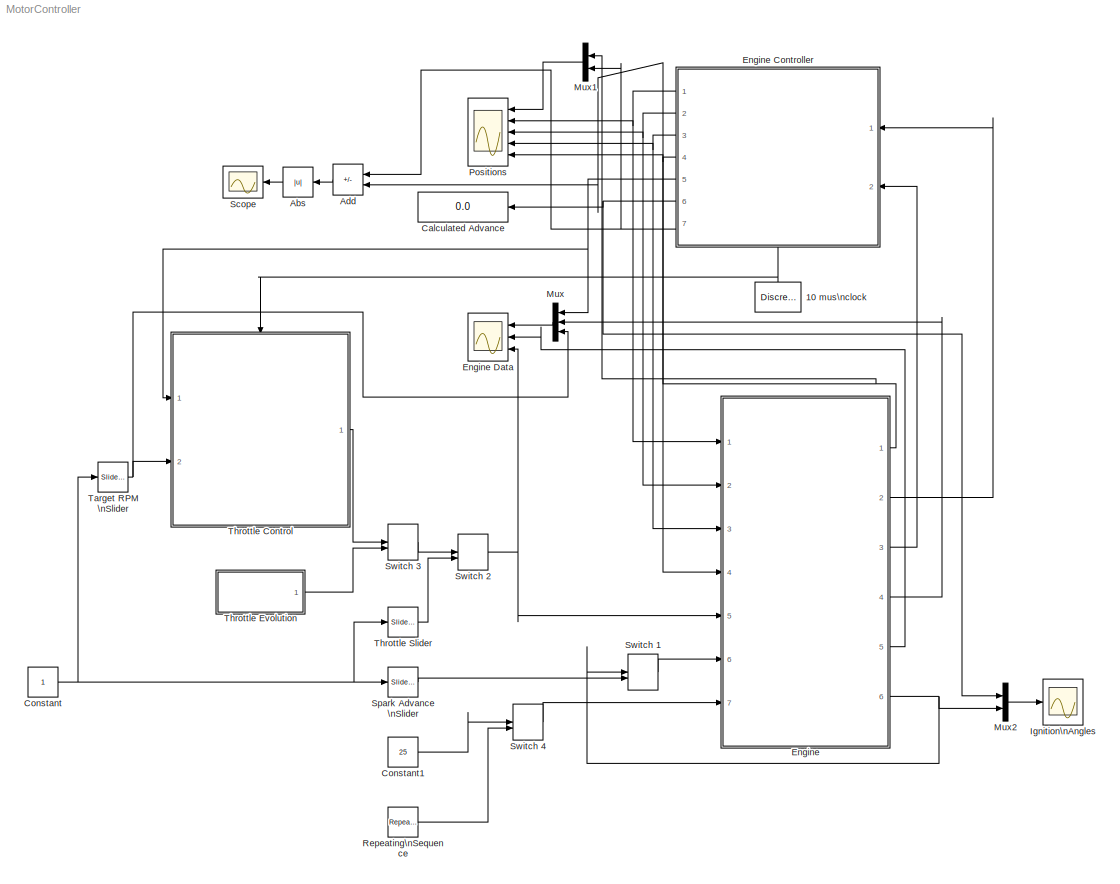
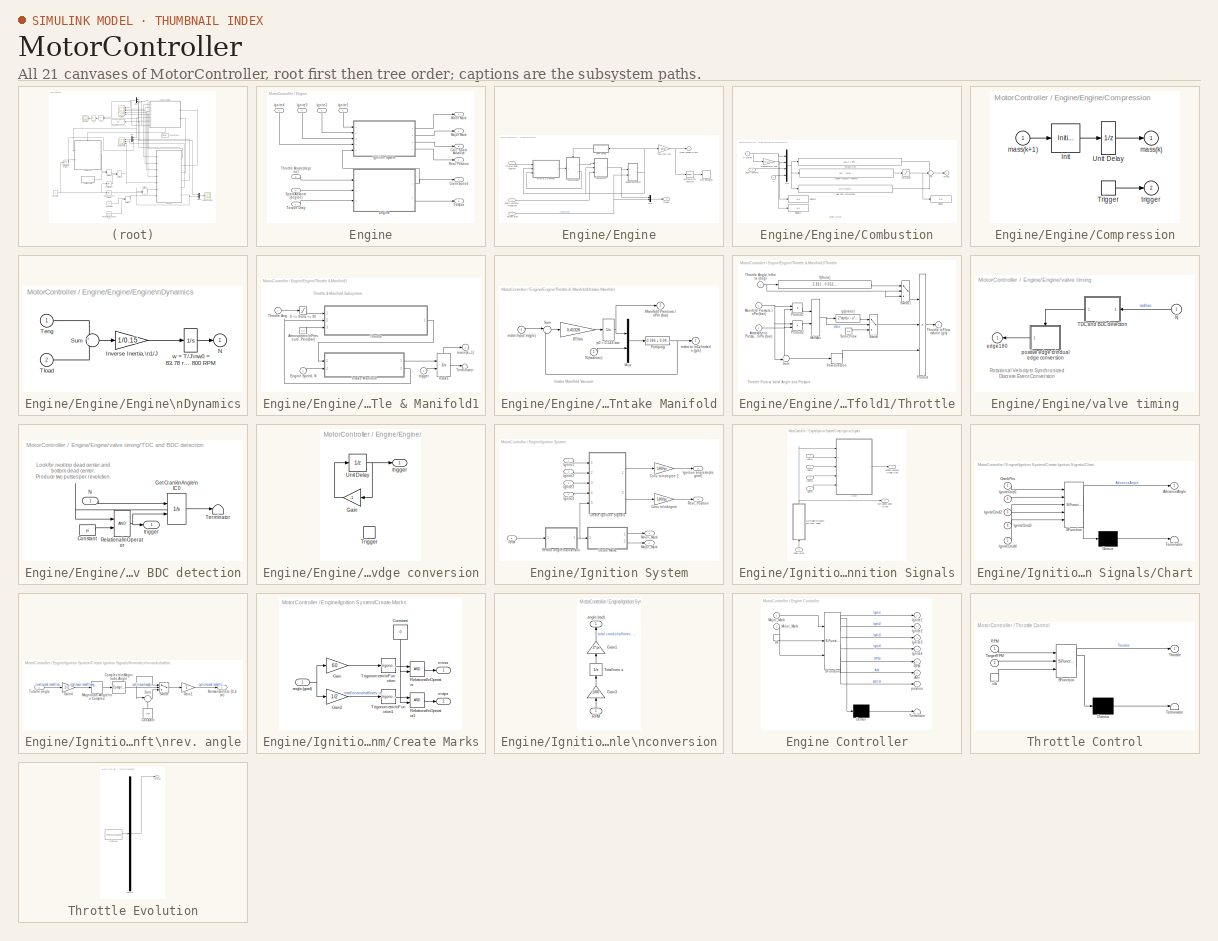
[diagram: thumbnail index - all 21 canvases of the model, root first then tree order]
MODEL MotorController
KIND model
BLOCK [DiscretePulseGenerator] 10 mus\nclock
  NameLocation = left
  Period = 1e-5
  Ports = [0, 1]
  PulseType = Time based
  PulseWidth = 50
  SID = 1
BLOCK [Abs] Abs
  NameLocation = top
  SID = 531
  SaturateOnIntegerOverflow = off
BLOCK [Sum] Add
  IconShape = rectangular
  Inputs = +-
  NameLocation = top
  Ports = [2, 1]
  SID = 530
BLOCK [Display] Calculated Advance
  Decimation = 1
  Ports = [1]
  SID = 64
BLOCK [Constant] Constant
  SID = 377
BLOCK [Constant] Constant1
  SID = 506
  Value = 25
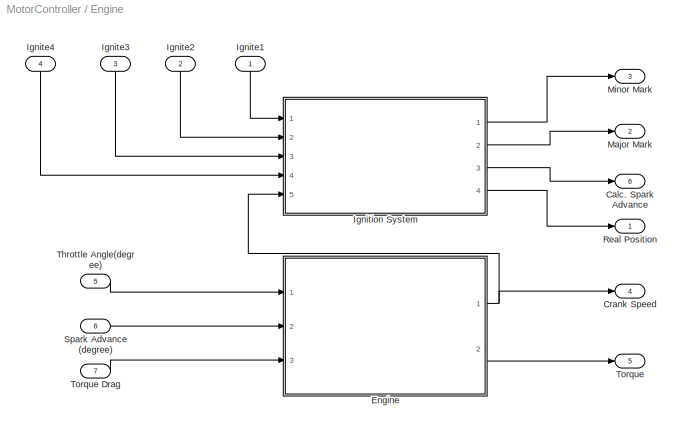
BLOCK [SubSystem] Engine
  Ports = [7, 6]
  RequestExecContextInheritance = off
  SID = 511
BLOCK [SubSystem] Engine Controller
  ErrorFcn = Stateflow.Translate.translate
  NameLocation = top
  PermitHierarchicalResolution = ExplicitOnly
  Ports = [2, 7, 0, 1]
  RequestExecContextInheritance = off
  SFBlockType = Chart
  SID = 41
  TreatAsAtomicUnit = on
BLOCK [Demux] Engine Controller/ Demux 
  Outputs = 1
  Ports = [1, 1]
  SID = 41::31
BLOCK [S-Function] Engine Controller/ SFunction 
  EnableBusSupport = on
  FunctionName = sf_sfun
  PortCounts = [3 8]
  Ports = [3, 8]
  SFcnIsStateOwnerBlock = off
  SFunctionDeploymentMode = off
  SID = 41::30
  Tag = Stateflow S-Function 1
BLOCK [Terminator] Engine Controller/ Terminator 
  SID = 41::32
BLOCK [Outport] Engine Controller/Adv
  Port = 6
  SID = 41::20
BLOCK [Outport] Engine Controller/Ignite1
  SID = 41::8
BLOCK [Outport] Engine Controller/Ignite2
  Port = 2
  SID = 41::9
BLOCK [Outport] Engine Controller/Ignite3
  Port = 3
  SID = 41::10
BLOCK [Outport] Engine Controller/Ignite4
  Port = 4
  SID = 41::11
BLOCK [Inport] Engine Controller/Major_Mark
  SID = 41::1
BLOCK [Inport] Engine Controller/Minor_Mark
  Port = 2
  SID = 41::2
BLOCK [Outport] Engine Controller/RPM
  Port = 5
  SID = 41::12
BLOCK [TriggerPort] Engine Controller/clk
  Ports = [0, 1]
  SID = 41::4
  ShowOutputPort = on
  VariantControl = (inherit)
BLOCK [Outport] Engine Controller/position
  Port = 7
  SID = 41::18
BLOCK [Scope] Engine Data
  Floating = off
  NumInputPorts = 3
  Ports = [3]
  SID = 43
  ScopeSpecificationString = Simulink.scopes.TimeScopeBlockCfg('CurrentConfiguration', extmgr.ConfigurationSet(extmgr.Configuration('Core','General UI',true),extmgr.Configuration('Core','Source UI',true),extmgr.Configuration('Sources','WiredSimulink',true,'DataLoggingVariableName','ScopeData1','DataLoggingSaveFormat','StructureWithTime','DataLoggingDecimation','1','DataLoggingDecimateData',true),extmgr.Configuration('Visuals'...<+3165ch>
BLOCK [Outport] Engine/ Calc. Spark Advance
  Port = 6
  SID = 524
BLOCK [Outport] Engine/Crank Speed
  Port = 4
  SID = 522
BLOCK [SubSystem] Engine/Engine
  Ports = [3, 2]
  RequestExecContextInheritance = off
  SID = 4
BLOCK [SubSystem] Engine/Engine/Combustion
  Ports = [3, 1]
  RequestExecContextInheritance = off
  SID = 201
BLOCK [Inport] Engine/Engine/Combustion/Air Charge
  SID = 202
BLOCK [Display] Engine/Engine/Combustion/Display
  Decimation = 1
  Ports = [1]
  SID = 388
BLOCK [Display] Engine/Engine/Combustion/Display1
  Decimation = 1
  Ports = [1]
  SID = 486
BLOCK [Display] Engine/Engine/Combustion/Display2
  Decimation = 1
  Ports = [1]
  SID = 487
BLOCK [Fcn] Engine/Engine/Combustion/High RPM Corrections
  Expr = -u[4]^5*100/700^5
  SID = 386
BLOCK [Fcn] Engine/Engine/Combustion/Ignition Advance Influence
  Expr = (30 - ((u[3] - u[4] * 0.0015*180/pi)^4)*0.01)
  SID = 209
BLOCK [Mux] Engine/Engine/Combustion/Mux
  DisplayOption = bar
  Ports = [4, 1]
  SID = 204
BLOCK [Inport] Engine/Engine/Combustion/N
  Port = 2
  SID = 203
BLOCK [Saturate] Engine/Engine/Combustion/Saturation
  LowerLimit = -150
  SID = 478
  UpperLimit = 150
BLOCK [Inport] Engine/Engine/Combustion/Spark Advance
  Port = 3
  SID = 373
BLOCK [Gain] Engine/Engine/Combustion/Stoichiometric Fuel
  Gain = 1/14.6
  OutDataTypeStr = Inherit: Same as input
  ParamDataTypeStr = Inherit: Same as input
  SID = 206
  SaturateOnIntegerOverflow = on
BLOCK [Sum] Engine/Engine/Combustion/Sum
  InputSameDT = on
  Inputs = +++
  OutDataTypeStr = Inherit: Same as first input
  Ports = [3, 1]
  SID = 207
  SaturateOnIntegerOverflow = on
BLOCK [Outport] Engine/Engine/Combustion/Torque
  InitialOutput = 0
  SID = 210
BLOCK [Fcn] Engine/Engine/Combustion/Torque Gen
  Expr = -181.3 + 379.36*u[1] + 21.91*u[1]/u[2] - (0.85*u[1]*u[1])/(u[2]^2) +0.027*u[4] - 0.000107*u[4]^2
  SID = 208
BLOCK [Reference] Engine/Engine/Compare\nTo Constant  REF=simulink/Logic and Bit\nOperations/Compare\nTo Constant
  OutDataTypeStr = boolean
  Ports = [1, 1]
  RTWMemSecDataConstants = Inherit from model
  RTWMemSecDataInternal = Inherit from model
  RTWMemSecDataParameters = Inherit from model
  RTWMemSecFuncExecute = Inherit from model
  RTWMemSecFuncInitTerm = Inherit from model
  SID = 484
  SourceBlock = simulink/Logic and Bit\nOperations/Compare\nTo Constant
  SourceProductBaseCode = SL
  SourceType = Compare To Constant
  ZeroCross = on
  const = 500
  relop = <=
BLOCK [SubSystem] Engine/Engine/Compression
  Ports = [1, 2, 0, 1]
  RequestExecContextInheritance = off
  SID = 211
  TreatAsAtomicUnit = on
BLOCK [InitialCondition] Engine/Engine/Compression/Init
  SID = 214
  Value = 0.152
BLOCK [TriggerPort] Engine/Engine/Compression/Trigger
  Ports = [0, 1]
  SID = 213
  ShowOutputPort = on
  TriggerType = either
  VariantControl = (inherit)
BLOCK [UnitDelay] Engine/Engine/Compression/Unit Delay
  HasFrameUpgradeWarning = on
  InitialCondition = 0.152
  SID = 215
  SampleTime = -1
BLOCK [Outport] Engine/Engine/Compression/mass(k)
  InitialOutput = 0.152
  SID = 216
BLOCK [Inport] Engine/Engine/Compression/mass(k+1)
  SID = 212
BLOCK [Outport] Engine/Engine/Compression/trigger
  InitialOutput = -1
  Port = 2
  SID = 217
BLOCK [SubSystem] Engine/Engine/Engine\nDynamics
  Ports = [2, 1]
  RequestExecContextInheritance = off
  SID = 223
BLOCK [Gain] Engine/Engine/Engine\nDynamics/Inverse Inertia,\n1//J
  Gain = 1/0.15
  OutDataTypeStr = Inherit: Same as input
  ParamDataTypeStr = Inherit: Same as input
  SID = 226
  SaturateOnIntegerOverflow = on
BLOCK [Outport] Engine/Engine/Engine\nDynamics/N
  InitialOutput = 0
  SID = 229
BLOCK [Sum] Engine/Engine/Engine\nDynamics/Sum
  InputSameDT = on
  Inputs = +-
  OutDataTypeStr = Inherit: Same as first input
  Ports = [2, 1]
  SID = 227
  SaturateOnIntegerOverflow = on
BLOCK [Inport] Engine/Engine/Engine\nDynamics/Teng
  SID = 224
BLOCK [Inport] Engine/Engine/Engine\nDynamics/Tload
  Port = 2
  SID = 225
BLOCK [Integrator] Engine/Engine/Engine\nDynamics/w = T//J\nw0 = 83.78 rad//s = 800 RPM
  InitialCondition = 83.78
  Ports = [1, 1]
  SID = 228
BLOCK [Mux] Engine/Engine/Mux
  DisplayOption = bar
  Inputs = 2
  Ports = [2, 1]
  SID = 231
BLOCK [Inport] Engine/Engine/Spark Adnvance \n(degree)
  Port = 2
  SID = 458
BLOCK [Stop] Engine/Engine/Stop Simulation
  SID = 485
BLOCK [SubSystem] Engine/Engine/Throttle & Manifold1
  Ports = [3, 1]
  RequestExecContextInheritance = off
  SID = 232
BLOCK [Saturate] Engine/Engine/Throttle & Manifold1/0 <= theta <= 90
  LowerLimit = 0
  NameLocation = top
  SID = 236
  UpperLimit = 90
BLOCK [Constant] Engine/Engine/Throttle & Manifold1/Atmospheric\nPressure, Pa\n(bar)
  SID = 237
  Value = 1.0
BLOCK [Inport] Engine/Engine/Throttle & Manifold1/Engine Speed, N
  Port = 2
  SID = 234
BLOCK [Integrator] Engine/Engine/Throttle & Manifold1/Intake
  ExternalReset = either
  Ports = [2, 1, 0, 0, 1]
  SID = 238
  ShowStatePort = on
BLOCK [SubSystem] Engine/Engine/Throttle & Manifold1/Intake Manifold
  Ports = [2, 2]
  RequestExecContextInheritance = off
  SID = 239
BLOCK [Outport] Engine/Engine/Throttle & Manifold1/Intake Manifold/Manifold Pressure,\nPm (bar)
  InitialOutput = 0
  Port = 2
  SID = 248
BLOCK [Mux] Engine/Engine/Throttle & Manifold1/Intake Manifold/Mux
  DisplayOption = bar
  Inputs = 2
  Ports = [2, 1]
  SID = 242
BLOCK [Inport] Engine/Engine/Throttle & Manifold1/Intake Manifold/N (rad//sec)
  Port = 2
  SID = 241
BLOCK [Fcn] Engine/Engine/Throttle & Manifold1/Intake Manifold/Pumping
  Expr = -0.366 + 0.08979*u[1]*u[2] - 0.0337*u[2]*u[1]*u[1] + 0.0001*u[1]*u[2]*u[2]
  SID = 243
BLOCK [Gain] Engine/Engine/Throttle & Manifold1/Intake Manifold/RT//Vm
  Gain = 0.41328
  OutDataTypeStr = Inherit: Same as input
  ParamDataTypeStr = Inherit: Same as input
  SID = 244
  SaturateOnIntegerOverflow = on
BLOCK [Sum] Engine/Engine/Throttle & Manifold1/Intake Manifold/Sum
  InputSameDT = on
  Inputs = |+-
  OutDataTypeStr = Inherit: Same as first input
  Ports = [2, 1]
  SID = 245
  SaturateOnIntegerOverflow = on
BLOCK [Inport] Engine/Engine/Throttle & Manifold1/Intake Manifold/mdot Input \n(g//s)
  SID = 240
BLOCK [Outport] Engine/Engine/Throttle & Manifold1/Intake Manifold/mdot to \nCylinder\n (g//s)
  InitialOutput = 0
  SID = 247
BLOCK [Integrator] Engine/Engine/Throttle & Manifold1/Intake Manifold/p0 = 0.543 bar
  InitialCondition = .543
  Ports = [1, 1]
  SID = 246
BLOCK [Terminator] Engine/Engine/Throttle & Manifold1/Terminator
  SID = 249
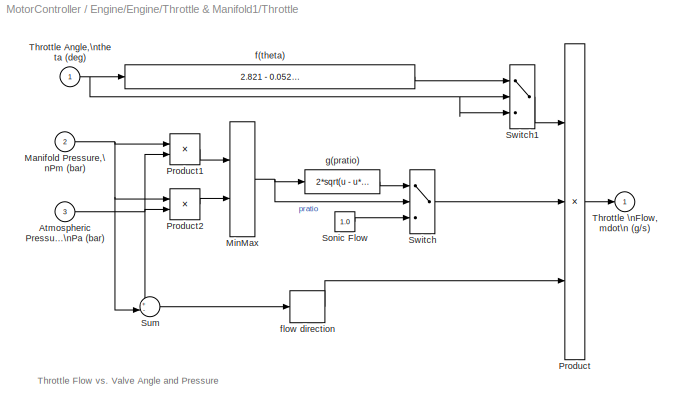
BLOCK [SubSystem] Engine/Engine/Throttle & Manifold1/Throttle
  Ports = [3, 1]
  RequestExecContextInheritance = off
  SID = 250
BLOCK [Inport] Engine/Engine/Throttle & Manifold1/Throttle Ang.
  SID = 233
BLOCK [Inport] Engine/Engine/Throttle & Manifold1/Throttle/Atmospheric Pressure,\nPa (bar) 
  Port = 3
  SID = 253
BLOCK [Inport] Engine/Engine/Throttle & Manifold1/Throttle/Manifold Pressure,\nPm (bar)
  Port = 2
  SID = 252
BLOCK [MinMax] Engine/Engine/Throttle & Manifold1/Throttle/MinMax
  InputSameDT = on
  Inputs = 2
  Ports = [2, 1]
  SID = 254
  SaturateOnIntegerOverflow = on
BLOCK [Product] Engine/Engine/Throttle & Manifold1/Throttle/Product
  InputSameDT = on
  Inputs = 3
  OutDataTypeStr = Inherit: Same as first input
  Ports = [3, 1]
  RndMeth = Zero
  SID = 255
  SaturateOnIntegerOverflow = on
BLOCK [Product] Engine/Engine/Throttle & Manifold1/Throttle/Product1
  InputSameDT = on
  Inputs = */
  OutDataTypeStr = Inherit: Same as first input
  Ports = [2, 1]
  RndMeth = Zero
  SID = 256
  SaturateOnIntegerOverflow = on
BLOCK [Product] Engine/Engine/Throttle & Manifold1/Throttle/Product2
  InputSameDT = on
  Inputs = /*
  OutDataTypeStr = Inherit: Same as first input
  Ports = [2, 1]
  RndMeth = Zero
  SID = 257
  SaturateOnIntegerOverflow = on
BLOCK [Constant] Engine/Engine/Throttle & Manifold1/Throttle/Sonic Flow 
  SID = 258
  Value = 1.0
BLOCK [Sum] Engine/Engine/Throttle & Manifold1/Throttle/Sum
  InputSameDT = on
  Inputs = +-|
  OutDataTypeStr = Inherit: Same as first input
  Ports = [2, 1]
  SID = 259
  SaturateOnIntegerOverflow = on
BLOCK [Switch] Engine/Engine/Throttle & Manifold1/Throttle/Switch
  SID = 260
  Threshold = 0.5
BLOCK [Switch] Engine/Engine/Throttle & Manifold1/Throttle/Switch1
  SID = 385
BLOCK [Inport] Engine/Engine/Throttle & Manifold1/Throttle/Throttle Angle,\ntheta (deg)
  NameLocation = top
  SID = 251
BLOCK [Outport] Engine/Engine/Throttle & Manifold1/Throttle/Throttle \nFlow, mdot\n (g//s)
  InitialOutput = 0
  SID = 264
BLOCK [Fcn] Engine/Engine/Throttle & Manifold1/Throttle/f(theta)
  Expr = 2.821 - 0.05231*u + 0.10299*u*u - 0.00063*u*u*u
  NameLocation = top
  SID = 261
BLOCK [Signum] Engine/Engine/Throttle & Manifold1/Throttle/flow direction
  SID = 262
BLOCK [Fcn] Engine/Engine/Throttle & Manifold1/Throttle/g(pratio)
  Expr = 2*sqrt(u - u*u)
  NameLocation = top
  SID = 263
BLOCK [Outport] Engine/Engine/Throttle & Manifold1/mass(k+1)
  InitialOutput = 0
  SID = 265
BLOCK [Inport] Engine/Engine/Throttle & Manifold1/trigger
  Port = 3
  SID = 235
BLOCK [Inport] Engine/Engine/Throttle angle (degree)
  OutDataTypeStr = double
  OutMax = 90
  OutMin = 0
  SID = 60
  VarSizeSig = No
BLOCK [Outport] Engine/Engine/Torque
  Port = 2
  SID = 380
BLOCK [Inport] Engine/Engine/Torque drag
  OutDataTypeStr = double
  Port = 3
  SID = 509
BLOCK [Outport] Engine/Engine/crank speed\n(rpm)
  InitialOutput = 0
  SID = 284
BLOCK [Gain] Engine/Engine/rad//s\nto rpm
  Gain = 30/pi
  OutDataTypeStr = Inherit: Same as input
  ParamDataTypeStr = Inherit: Same as input
  SID = 370
  SaturateOnIntegerOverflow = on
BLOCK [SubSystem] Engine/Engine/valve timing
  Ports = [1, 1]
  RequestExecContextInheritance = off
  SID = 269
BLOCK [Inport] Engine/Engine/valve timing/N
  SID = 270
BLOCK [SubSystem] Engine/Engine/valve timing/TDC and BDC detection
  Ports = [1, 1]
  RequestExecContextInheritance = off
  SID = 271
BLOCK [Constant] Engine/Engine/valve timing/TDC and BDC detection/Constant
  SID = 273
  Value = pi
BLOCK [Integrator] Engine/Engine/valve timing/TDC and BDC detection/Get Crank\nAngle\nIC 0
  ExternalReset = rising
  NameLocation = top
  Ports = [2, 1, 0, 0, 1]
  SID = 274
  ShowStatePort = on
BLOCK [Inport] Engine/Engine/valve timing/TDC and BDC detection/N
  SID = 272
BLOCK [RelationalOperator] Engine/Engine/valve timing/TDC and BDC detection/Relational\nOperator
  Ports = [2, 1]
  SID = 275
BLOCK [Terminator] Engine/Engine/valve timing/TDC and BDC detection/Terminator
  SID = 276
BLOCK [Outport] Engine/Engine/valve timing/TDC and BDC detection/trigger
  InitialOutput = 0
  SID = 277
BLOCK [Outport] Engine/Engine/valve timing/edge180
  InitialOutput = -1
  SID = 283
BLOCK [SubSystem] Engine/Engine/valve timing/positive edge to\ndual edge conversion
  Ports = [0, 1, 0, 1]
  RequestExecContextInheritance = off
  SID = 278
  TreatAsAtomicUnit = on
BLOCK [Gain] Engine/Engine/valve timing/positive edge to\ndual edge conversion/Gain
  Gain = -1
  OutDataTypeStr = Inherit: Same as input
  ParamDataTypeStr = Inherit: Same as input
  SID = 280
  SaturateOnIntegerOverflow = on
BLOCK [TriggerPort] Engine/Engine/valve timing/positive edge to\ndual edge conversion/Trigger
  Ports = []
  SID = 279
  VariantControl = (inherit)
BLOCK [UnitDelay] Engine/Engine/valve timing/positive edge to\ndual edge conversion/Unit Delay
  HasFrameUpgradeWarning = on
  InitialCondition = 1
  SID = 281
  SampleTime = -1
BLOCK [Outport] Engine/Engine/valve timing/positive edge to\ndual edge conversion/trigger
  InitialOutput = -1
  SID = 282
BLOCK [Inport] Engine/Ignite1
  NameLocation = left
  SID = 512
BLOCK [Inport] Engine/Ignite2
  NameLocation = left
  Port = 2
  SID = 513
BLOCK [Inport] Engine/Ignite3
  NameLocation = left
  Port = 3
  SID = 514
BLOCK [Inport] Engine/Ignite4
  NameLocation = left
  Port = 4
  SID = 515
BLOCK [SubSystem] Engine/Ignition System
  Ports = [5, 4]
  RequestExecContextInheritance = off
  SID = 390
BLOCK [Gain] Engine/Ignition System/Conv. to\ndegree
  Gain = 180/pi
  OutDataTypeStr = Inherit: Same as input
  ParamDataTypeStr = Inherit: Same as input
  SID = 397
  SaturateOnIntegerOverflow = on
BLOCK [Gain] Engine/Ignition System/Conv. to\ndegree 2
  Gain = 180/pi
  OutDataTypeStr = Inherit: Same as input
  ParamDataTypeStr = Inherit: Same as input
  SID = 398
  SaturateOnIntegerOverflow = on
BLOCK [SubSystem] Engine/Ignition System/Create Ignition Signals
  Ports = [5, 2]
  RequestExecContextInheritance = off
  SID = 399
BLOCK [SubSystem] Engine/Ignition System/Create Ignition Signals/Chart
  ErrorFcn = Stateflow.Translate.translate
  PermitHierarchicalResolution = ExplicitOnly
  Ports = [5, 1]
  RequestExecContextInheritance = off
  SFBlockType = Chart
  SID = 476
  TreatAsAtomicUnit = on
BLOCK [Demux] Engine/Ignition System/Create Ignition Signals/Chart/ Demux 
  Outputs = 1
  Ports = [1, 1]
  SID = 476::39
BLOCK [S-Function] Engine/Ignition System/Create Ignition Signals/Chart/ SFunction 
  EnableBusSupport = on
  FunctionName = sf_sfun
  PortCounts = [5 2]
  Ports = [5, 2]
  SFcnIsStateOwnerBlock = off
  SFunctionDeploymentMode = off
  SID = 476::38
  Tag = Stateflow S-Function 2
BLOCK [Terminator] Engine/Ignition System/Create Ignition Signals/Chart/ Terminator 
  SID = 476::40
BLOCK [Outport] Engine/Ignition System/Create Ignition Signals/Chart/AdvanceAngle
  SID = 476::25
BLOCK [Inport] Engine/Ignition System/Create Ignition Signals/Chart/CrankPos
  SID = 476::26
BLOCK [Inport] Engine/Ignition System/Create Ignition Signals/Chart/IgniteCmd1
  Port = 2
  SID = 476::27
BLOCK [Inport] Engine/Ignition System/Create Ignition Signals/Chart/IgniteCmd2
  Port = 3
  SID = 476::28
BLOCK [Inport] Engine/Ignition System/Create Ignition Signals/Chart/IgniteCmd3
  Port = 4
  SID = 476::29
BLOCK [Inport] Engine/Ignition System/Create Ignition Signals/Chart/IgniteCmd4
  Port = 5
  SID = 476::30
BLOCK [Inport] Engine/Ignition System/Create Ignition Signals/Ignite1
  SID = 400
BLOCK [Inport] Engine/Ignition System/Create Ignition Signals/Ignite2
  Port = 2
  SID = 401
BLOCK [Inport] Engine/Ignition System/Create Ignition Signals/Ignite3
  Port = 3
  SID = 402
BLOCK [Inport] Engine/Ignition System/Create Ignition Signals/Ignite4
  Port = 4
  SID = 403
BLOCK [Outport] Engine/Ignition System/Create Ignition Signals/Ignition Advance \nAngle (rad)
  SID = 432
BLOCK [SubSystem] Engine/Ignition System/Create Ignition Signals/Normalize\ncrankshaft\nrev. angle
  NameLocation = left
  Ports = [1, 1]
  RequestExecContextInheritance = off
  SID = 422
BLOCK [ComplexToMagnitudeAngle] Engine/Ignition System/Create Ignition Signals/Normalize\ncrankshaft\nrev. angle/Complex to\nMagnitude-Angle
  NameLocation = top
  Output = Angle
  Ports = [1, 1]
  SID = 424
BLOCK [Constant] Engine/Ignition System/Create Ignition Signals/Normalize\ncrankshaft\nrev. angle/Constant
  NameLocation = left
  SID = 425
  Value = 2*pi
BLOCK [Gain] Engine/Ignition System/Create Ignition Signals/Normalize\ncrankshaft\nrev. angle/Gain1
  Gain = 2
  NameLocation = top
  OutDataTypeStr = Inherit: Same as input
  ParamDataTypeStr = Inherit: Same as input
  SID = 426
  SaturateOnIntegerOverflow = on
BLOCK [Gain] Engine/Ignition System/Create Ignition Signals/Normalize\ncrankshaft\nrev. angle/Gain4
  Gain = 1/2
  NameLocation = top
  OutDataTypeStr = Inherit: Same as input
  ParamDataTypeStr = Inherit: Same as input
  SID = 427
  SaturateOnIntegerOverflow = on
BLOCK [MagnitudeAngleToComplex] Engine/Ignition System/Create Ignition Signals/Normalize\ncrankshaft\nrev. angle/Magnitude-Angle\nto Complex
  ConstantPart = 1
  Input = Angle
  Ports = [1, 1]
  SID = 428
BLOCK [Outport] Engine/Ignition System/Create Ignition Signals/Normalize\ncrankshaft\nrev. angle/Normalized\nto [0,4 pi)
  SID = 431
BLOCK [Sum] Engine/Ignition System/Create Ignition Signals/Normalize\ncrankshaft\nrev. angle/Sum
  Inputs = |++
  Ports = [2, 1]
  SID = 429
  SaturateOnIntegerOverflow = on
BLOCK [Switch] Engine/Ignition System/Create Ignition Signals/Normalize\ncrankshaft\nrev. angle/Switch
  InputSameDT = off
  SID = 430
BLOCK [Inport] Engine/Ignition System/Create Ignition Signals/Normalize\ncrankshaft\nrev. angle/Total\n angle
  SID = 423
BLOCK [Inport] Engine/Ignition System/Create Ignition Signals/angle (grad)
  NameLocation = right
  Port = 5
  SID = 404
BLOCK [Outport] Engine/Ignition System/Create Ignition Signals/normalized angle \n(rad)
  Port = 2
  SID = 434
BLOCK [SubSystem] Engine/Ignition System/Create Marks
  Ports = [1, 2]
  RequestExecContextInheritance = off
  SID = 435
BLOCK [Constant] Engine/Ignition System/Create Marks/Constant
  NameLocation = left
  SID = 437
  Value = 0
BLOCK [Gain] Engine/Ignition System/Create Marks/Gain
  Gain = 60
  OutDataTypeStr = Inherit: Same as input
  ParamDataTypeStr = Inherit: Same as input
  SID = 438
  SaturateOnIntegerOverflow = on
BLOCK [Gain] Engine/Ignition System/Create Marks/Gain2
  Gain = 1/2
  OutDataTypeStr = Inherit: Same as input
  ParamDataTypeStr = Inherit: Same as input
  SID = 439
  SaturateOnIntegerOverflow = on
BLOCK [RelationalOperator] Engine/Ignition System/Create Marks/Relational\nOperator
  InputSameDT = off
  OutDataTypeStr = boolean
  Ports = [2, 1]
  SID = 440
BLOCK [RelationalOperator] Engine/Ignition System/Create Marks/Relational\nOperator1
  InputSameDT = off
  OutDataTypeStr = boolean
  Ports = [2, 1]
  SID = 441
BLOCK [Trigonometry] Engine/Ignition System/Create Marks/Trigonometric\nFunction
  Ports = [1, 1]
  SID = 442
BLOCK [Trigonometry] Engine/Ignition System/Create Marks/Trigonometric\nFunction1
  Ports = [1, 1]
  SID = 443
BLOCK [Inport] Engine/Ignition System/Create Marks/angle (grad)
  SID = 436
BLOCK [Outport] Engine/Ignition System/Create Marks/major
  Port = 2
  SID = 445
BLOCK [Outport] Engine/Ignition System/Create Marks/minor
  SID = 444
BLOCK [Inport] Engine/Ignition System/Ignite1
  OutDataTypeStr = boolean
  SID = 393
BLOCK [Inport] Engine/Ignition System/Ignite2
  OutDataTypeStr = boolean
  Port = 2
  SID = 394
BLOCK [Inport] Engine/Ignition System/Ignite3
  OutDataTypeStr = boolean
  Port = 3
  SID = 395
BLOCK [Inport] Engine/Ignition System/Ignite4
  OutDataTypeStr = boolean
  Port = 4
  SID = 396
BLOCK [Outport] Engine/Ignition System/Ignition angles\n(degree)
  Port = 3
  SID = 455
BLOCK [Outport] Engine/Ignition System/Major_Mark
  Port = 2
  SID = 454
BLOCK [Outport] Engine/Ignition System/Minor_Mark
  SID = 453
BLOCK [Inport] Engine/Ignition System/RPM
  Port = 5
  SID = 457
BLOCK [SubSystem] Engine/Ignition System/RPM to angle\nconversion
  Ports = [1, 1]
  RequestExecContextInheritance = off
  SID = 447
BLOCK [Gain] Engine/Ignition System/RPM to angle\nconversion/Gain1
  Gain = 2*pi
  NameLocation = left
  OutDataTypeStr = Inherit: Same as input
  ParamDataTypeStr = Inherit: Same as input
  SID = 449
  SaturateOnIntegerOverflow = on
BLOCK [Gain] Engine/Ignition System/RPM to angle\nconversion/Gain3
  Gain = 1/60
  NameLocation = left
  OutDataTypeStr = Inherit: Same as input
  ParamDataTypeStr = Inherit: Same as input
  SID = 450
  SaturateOnIntegerOverflow = on
BLOCK [Inport] Engine/Ignition System/RPM to angle\nconversion/RPM
  NameLocation = right
  SID = 448
BLOCK [Integrator] Engine/Ignition System/RPM to angle\nconversion/Total\nrev.s
  NameLocation = right
  Ports = [1, 1]
  SID = 451
BLOCK [Outport] Engine/Ignition System/RPM to angle\nconversion/angle (rad)
  NameLocation = right
  SID = 452
BLOCK [Outport] Engine/Ignition System/Real_Position
  Port = 4
  SID = 456
BLOCK [Outport] Engine/Major Mark
  Port = 2
  SID = 520
BLOCK [Outport] Engine/Minor Mark
  Port = 3
  SID = 521
BLOCK [Outport] Engine/Real Position
  SID = 519
BLOCK [Inport] Engine/Spark Advance (degree)
  Port = 6
  SID = 517
BLOCK [Inport] Engine/Throttle Angle(degree)
  Port = 5
  SID = 516
BLOCK [Outport] Engine/Torque
  Port = 5
  SID = 523
BLOCK [Inport] Engine/Torque Drag
  Port = 7
  SID = 518
BLOCK [Scope] Ignition\nAngles
  Floating = off
  NumInputPorts = 1
  Ports = [1]
  SID = 39
  ScopeSpecificationString = Simulink.scopes.TimeScopeBlockCfg('CurrentConfiguration', extmgr.ConfigurationSet(extmgr.Configuration('Core','General UI',true),extmgr.Configuration('Core','Source UI',true),extmgr.Configuration('Sources','WiredSimulink',true,'DataLoggingSaveFormat','StructureWithTime','DataLoggingMaxPoints','100000','DataLoggingLimitDataPoints',true,'DataLoggingDecimation','1','DataLoggingDecimateData',true),ext...<+1737ch>
BLOCK [Mux] Mux
  DisplayOption = bar
  Inputs = 3
  Ports = [3, 1]
  SID = 42
BLOCK [Mux] Mux1
  DisplayOption = bar
  Inputs = 2
  NameLocation = top
  Ports = [2, 1]
  SID = 59
BLOCK [Mux] Mux2
  DisplayOption = bar
  Inputs = 2
  NameLocation = top
  Ports = [2, 1]
  SID = 477
BLOCK [Scope] Positions
  Floating = off
  NumInputPorts = 5
  Ports = [5]
  SID = 56
  ScopeSpecificationString = Simulink.scopes.TimeScopeBlockCfg('CurrentConfiguration', extmgr.ConfigurationSet(extmgr.Configuration('Core','General UI',true),extmgr.Configuration('Core','Source UI',true),extmgr.Configuration('Sources','WiredSimulink',true,'DataLoggingVariableName','ScopeData2','DataLoggingSaveFormat','StructureWithTime','DataLoggingLimitDataPoints',true,'DataLoggingDecimation','1','DataLoggingDecimateData',tr...<+4544ch>
BLOCK [Reference] Repeating\nSequence  REF=simulink/Sources/Repeating\nSequence
  Ports = [0, 1]
  RTWMemSecDataConstants = Inherit from model
  RTWMemSecDataInternal = Inherit from model
  RTWMemSecDataParameters = Inherit from model
  RTWMemSecFuncExecute = Inherit from model
  RTWMemSecFuncInitTerm = Inherit from model
  SID = 510
  SourceBlock = simulink/Sources/Repeating\nSequence
  SourceProductBaseCode = SL
  SourceType = Repeating table
  rep_seq_t = [0 1 2 3 4 5 6]
  rep_seq_y = [20 40 60 80 40 0 20]
BLOCK [Scope] Scope
  Floating = off
  NameLocation = top
  NumInputPorts = 1
  Ports = [1]
  SID = 528
  ScopeSpecificationString = Simulink.scopes.TimeScopeBlockCfg('CurrentConfiguration', extmgr.ConfigurationSet(extmgr.Configuration('Core','General UI',true),extmgr.Configuration('Core','Source UI',true),extmgr.Configuration('Sources','WiredSimulink',true,'DataLoggingVariableName','ScopeData1'),extmgr.Configuration('Visuals','Time Domain',true,'SerializedDisplays',{struct('MinYLimReal','1.76713','MaxYLimReal','1.7686','YLabel...<+1426ch>
BLOCK [Reference] Spark Advance \nSlider  REF=simulink/Math\nOperations/Slider\nGain
  Ports = [1, 1]
  RTWMemSecDataConstants = Inherit from model
  RTWMemSecDataInternal = Inherit from model
  RTWMemSecDataParameters = Inherit from model
  RTWMemSecFuncExecute = Inherit from model
  RTWMemSecFuncInitTerm = Inherit from model
  SID = 374
  SourceBlock = simulink/Math\nOperations/Slider\nGain
  SourceProductBaseCode = SL
  SourceType = Slider Gain
  gain = 5.0
  high = 60
  low = -15
BLOCK [ManualSwitch] Switch 1
  CurrentSetting = 0
  SID = 459
BLOCK [ManualSwitch] Switch 2
  CurrentSetting = 0
  SID = 376
BLOCK [ManualSwitch] Switch 3
  CurrentSetting = 0
  SID = 480
BLOCK [ManualSwitch] Switch 4
  SID = 504
BLOCK [Reference] Target RPM \nSlider  REF=simulink/Math\nOperations/Slider\nGain
  Ports = [1, 1]
  RTWMemSecDataConstants = Inherit from model
  RTWMemSecDataInternal = Inherit from model
  RTWMemSecDataParameters = Inherit from model
  RTWMemSecFuncExecute = Inherit from model
  RTWMemSecFuncInitTerm = Inherit from model
  SID = 483
  SourceBlock = simulink/Math\nOperations/Slider\nGain
  SourceProductBaseCode = SL
  SourceType = Slider Gain
  gain = 7000
  high = 7000
  low = 800
BLOCK [SubSystem] Throttle Control
  ErrorFcn = Stateflow.Translate.translate
  PermitHierarchicalResolution = ExplicitOnly
  Ports = [2, 1, 0, 1]
  RequestExecContextInheritance = off
  SFBlockType = Chart
  SID = 481
  TreatAsAtomicUnit = on
BLOCK [Demux] Throttle Control/ Demux 
  Outputs = 1
  Ports = [1, 1]
  SID = 481::38
BLOCK [S-Function] Throttle Control/ SFunction 
  EnableBusSupport = on
  FunctionName = sf_sfun
  PortCounts = [3 2]
  Ports = [3, 2]
  SFcnIsStateOwnerBlock = off
  SFunctionDeploymentMode = off
  SID = 481::37
  Tag = Stateflow S-Function 3
BLOCK [Terminator] Throttle Control/ Terminator 
  SID = 481::39
BLOCK [Inport] Throttle Control/RPM
  SID = 481::25
BLOCK [Inport] Throttle Control/TargetRPM
  Port = 2
  SID = 481::26
BLOCK [Outport] Throttle Control/Throttle
  SID = 481::27
BLOCK [TriggerPort] Throttle Control/clk
  Ports = [0, 1]
  SID = 481::28
  ShowOutputPort = on
  StatesWhenEnabling = held
  VariantControl = (inherit)
BLOCK [SubSystem] Throttle Evolution
  ClipboardFcn = sigbuilder_block('clipboard');
  CloseFcn = sigbuilder_block('close');
  ContinueFcn = sigbuilder_block('continue')
  CopyFcn = sigbuilder_block('copy');
  DeleteFcn = sigbuilder_block('delete');
  LoadFcn = sigbuilder_block('load');
  MaskHideContents = on
  ModelCloseFcn = sigbuilder_block('modelClose');
  NameChangeFcn = sigbuilder_block('namechange');
  OpenFcn = sigbuilder_block('open',[54.75 146.25 550.5 390.75 ]);
  PauseFcn = sigbuilder_block('pause')
  Ports = [0, 1]
  PreSaveFcn = sigbuilder_block('preSave');
  RequestExecContextInheritance = off
  SID = 70
  StartFcn = sigbuilder_block('start');
  StopFcn = sigbuilder_block('stop');
  Tag = STV Subsys
BLOCK [Demux] Throttle Evolution/Demux
  DisplayOption = none
  Outputs = 1
  Ports = [1, 1]
  SID = 70:1
  Tag = STV Demux
BLOCK [FromWorkspace] Throttle Evolution/FromWs
  SID = 70:2
  SigBuilderData = DataTag0
  Tag = STV FromWs
  VariableName = tuvar
  VnvData = DataTag1
BLOCK [Outport] Throttle Evolution/Throttle
  SID = 70:3
  Tag = STV Outport
BLOCK [Reference] Throttle Slider  REF=simulink/Math\nOperations/Slider\nGain
  Ports = [1, 1]
  RTWMemSecDataConstants = Inherit from model
  RTWMemSecDataInternal = Inherit from model
  RTWMemSecDataParameters = Inherit from model
  RTWMemSecFuncExecute = Inherit from model
  RTWMemSecFuncInitTerm = Inherit from model
  SID = 379
  SourceBlock = simulink/Math\nOperations/Slider\nGain
  SourceProductBaseCode = SL
  SourceType = Slider Gain
  gain = 90.0
  high = 90
  low = 0
ANNOTATION Engine/Engine/Combustion: Engine Torque
ANNOTATION Engine/Engine/Throttle & Manifold1: Throttle & Manifold Subsystem
ANNOTATION Engine/Engine/Throttle & Manifold1/Intake Manifold: Intake Manifold Vacuum
ANNOTATION Engine/Engine/Throttle & Manifold1/Throttle: Throttle Flow vs. Valve Angle and Pressure
ANNOTATION Engine/Engine/valve timing: Rotational Velocity to Synchronized \nDiscrete Event Conversion
ANNOTATION Engine/Engine/valve timing/TDC and BDC detection: Look for next top dead center.and\nbottom dead center.\nProduce two pulses per revolution.
ANNOTATION Engine/Ignition System/Create Ignition Signals/Normalize\ncrankshaft\nrev. angle: .
NET 10 mus\nclock:1 -> Engine Controller:trigger, Throttle Control:trigger
LINE Abs:1 -> Scope:1
LINE Add:1 -> Abs:1
LINE Constant1:1 -> Switch 4:1
NET Constant:1 -> Spark Advance \nSlider:1, Target RPM \nSlider:1, Throttle Slider:1
LINE Engine Controller/ Demux :1 -> Engine Controller/ Terminator :1
LINE Engine Controller/ SFunction :1 -> Engine Controller/ Demux :1
LINE Engine Controller/ SFunction :2 -> Engine Controller/Ignite1:1
LINE Engine Controller/ SFunction :3 -> Engine Controller/Ignite2:1
LINE Engine Controller/ SFunction :4 -> Engine Controller/Ignite3:1
LINE Engine Controller/ SFunction :5 -> Engine Controller/Ignite4:1
LINE Engine Controller/ SFunction :6 -> Engine Controller/RPM:1
LINE Engine Controller/ SFunction :7 -> Engine Controller/Adv:1
LINE Engine Controller/ SFunction :8 -> Engine Controller/position:1
LINE Engine Controller/Major_Mark:1 -> Engine Controller/ SFunction :1
LINE Engine Controller/Minor_Mark:1 -> Engine Controller/ SFunction :2
LINE Engine Controller/clk:1 -> Engine Controller/ SFunction :3
NET Engine Controller:1 -> Engine:1, Positions:2
NET Engine Controller:2 -> Engine:2, Positions:3
NET Engine Controller:3 -> Engine:3, Positions:4
NET Engine Controller:4 -> Engine:4, Positions:5
NET Engine Controller:5 -> Mux:1, Throttle Control:1
NET Engine Controller:6 -> Calculated Advance:1, Mux2:1
NET Engine Controller:7 -> Add:1, Mux1:2
NET Engine/Engine/Combustion/Air Charge:1 -> Engine/Engine/Combustion/Display1:1, Engine/Engine/Combustion/Mux:1, Engine/Engine/Combustion/Stoichiometric Fuel:1
LINE Engine/Engine/Combustion/High RPM Corrections:1 -> Engine/Engine/Combustion/Sum:3
LINE Engine/Engine/Combustion/Ignition Advance Influence:1 -> Engine/Engine/Combustion/Saturation:1
NET Engine/Engine/Combustion/Mux:1 -> Engine/Engine/Combustion/High RPM Corrections:1, Engine/Engine/Combustion/Ignition Advance Influence:1, Engine/Engine/Combustion/Torque Gen:1
LINE Engine/Engine/Combustion/N:1 -> Engine/Engine/Combustion/Mux:4
NET Engine/Engine/Combustion/Saturation:1 -> Engine/Engine/Combustion/Display:1, Engine/Engine/Combustion/Sum:2
LINE Engine/Engine/Combustion/Spark Advance:1 -> Engine/Engine/Combustion/Mux:3
NET Engine/Engine/Combustion/Stoichiometric Fuel:1 -> Engine/Engine/Combustion/Display2:1, Engine/Engine/Combustion/Mux:2
LINE Engine/Engine/Combustion/Sum:1 -> Engine/Engine/Combustion/Torque:1
LINE Engine/Engine/Combustion/Torque Gen:1 -> Engine/Engine/Combustion/Sum:1
NET Engine/Engine/Combustion:1 -> Engine/Engine/Engine\nDynamics:1, Engine/Engine/Mux:1
LINE Engine/Engine/Compare\nTo Constant:1 -> Engine/Engine/Stop Simulation:1
LINE Engine/Engine/Compression/Init:1 -> Engine/Engine/Compression/Unit Delay:1
LINE Engine/Engine/Compression/Trigger:1 -> Engine/Engine/Compression/trigger:1
LINE Engine/Engine/Compression/Unit Delay:1 -> Engine/Engine/Compression/mass(k):1
LINE Engine/Engine/Compression/mass(k+1):1 -> Engine/Engine/Compression/Init:1
LINE Engine/Engine/Compression:1 -> Engine/Engine/Combustion:1
LINE Engine/Engine/Compression:2 -> Engine/Engine/Throttle & Manifold1:3
LINE Engine/Engine/Engine\nDynamics/Inverse Inertia,\n1//J:1 -> Engine/Engine/Engine\nDynamics/w = T//J\nw0 = 83.78 rad//s = 800 RPM:1
LINE Engine/Engine/Engine\nDynamics/Sum:1 -> Engine/Engine/Engine\nDynamics/Inverse Inertia,\n1//J:1
LINE Engine/Engine/Engine\nDynamics/Teng:1 -> Engine/Engine/Engine\nDynamics/Sum:1
LINE Engine/Engine/Engine\nDynamics/Tload:1 -> Engine/Engine/Engine\nDynamics/Sum:2
LINE Engine/Engine/Engine\nDynamics/w = T//J\nw0 = 83.78 rad//s = 800 RPM:1 -> Engine/Engine/Engine\nDynamics/N:1
NET Engine/Engine/Engine\nDynamics:1 -> Engine/Engine/Combustion:2, Engine/Engine/Throttle & Manifold1:2, Engine/Engine/rad//s\nto rpm:1, Engine/Engine/valve timing:1
LINE Engine/Engine/Mux:1 -> Engine/Engine/Torque:1
LINE Engine/Engine/Spark Adnvance \n(degree):1 -> Engine/Engine/Combustion:3
LINE Engine/Engine/Throttle & Manifold1/0 <= theta <= 90:1 -> Engine/Engine/Throttle & Manifold1/Throttle:1
LINE Engine/Engine/Throttle & Manifold1/Atmospheric\nPressure, Pa\n(bar):1 -> Engine/Engine/Throttle & Manifold1/Throttle:3
LINE Engine/Engine/Throttle & Manifold1/Engine Speed, N:1 -> Engine/Engine/Throttle & Manifold1/Intake Manifold:2
LINE Engine/Engine/Throttle & Manifold1/Intake Manifold/Mux:1 -> Engine/Engine/Throttle & Manifold1/Intake Manifold/Pumping:1
LINE Engine/Engine/Throttle & Manifold1/Intake Manifold/N (rad//sec):1 -> Engine/Engine/Throttle & Manifold1/Intake Manifold/Mux:2
NET Engine/Engine/Throttle & Manifold1/Intake Manifold/Pumping:1 -> Engine/Engine/Throttle & Manifold1/Intake Manifold/Sum:2, Engine/Engine/Throttle & Manifold1/Intake Manifold/mdot to \nCylinder\n (g//s):1
LINE Engine/Engine/Throttle & Manifold1/Intake Manifold/RT//Vm:1 -> Engine/Engine/Throttle & Manifold1/Intake Manifold/p0 = 0.543 bar:1
LINE Engine/Engine/Throttle & Manifold1/Intake Manifold/Sum:1 -> Engine/Engine/Throttle & Manifold1/Intake Manifold/RT//Vm:1
LINE Engine/Engine/Throttle & Manifold1/Intake Manifold/mdot Input \n(g//s):1 -> Engine/Engine/Throttle & Manifold1/Intake Manifold/Sum:1
NET Engine/Engine/Throttle & Manifold1/Intake Manifold/p0 = 0.543 bar:1 -> Engine/Engine/Throttle & Manifold1/Intake Manifold/Manifold Pressure,\nPm (bar):1, Engine/Engine/Throttle & Manifold1/Intake Manifold/Mux:1
LINE Engine/Engine/Throttle & Manifold1/Intake Manifold:1 -> Engine/Engine/Throttle & Manifold1/Intake:1
LINE Engine/Engine/Throttle & Manifold1/Intake Manifold:2 -> Engine/Engine/Throttle & Manifold1/Throttle:2
LINE Engine/Engine/Throttle & Manifold1/Intake:1 -> Engine/Engine/Throttle & Manifold1/Terminator:1
LINE Engine/Engine/Throttle & Manifold1/Intake:state -> Engine/Engine/Throttle & Manifold1/mass(k+1):1
LINE Engine/Engine/Throttle & Manifold1/Throttle Ang.:1 -> Engine/Engine/Throttle & Manifold1/0 <= theta <= 90:1
NET Engine/Engine/Throttle & Manifold1/Throttle/Atmospheric Pressure,\nPa (bar) :1 -> Engine/Engine/Throttle & Manifold1/Throttle/Product1:2, Engine/Engine/Throttle & Manifold1/Throttle/Product2:2, Engine/Engine/Throttle & Manifold1/Throttle/Sum:1
NET Engine/Engine/Throttle & Manifold1/Throttle/Manifold Pressure,\nPm (bar):1 -> Engine/Engine/Throttle & Manifold1/Throttle/Product1:1, Engine/Engine/Throttle & Manifold1/Throttle/Product2:1, Engine/Engine/Throttle & Manifold1/Throttle/Sum:2
NET Engine/Engine/Throttle & Manifold1/Throttle/MinMax:1 -> Engine/Engine/Throttle & Manifold1/Throttle/Switch:2, Engine/Engine/Throttle & Manifold1/Throttle/g(pratio):1
LINE Engine/Engine/Throttle & Manifold1/Throttle/Product1:1 -> Engine/Engine/Throttle & Manifold1/Throttle/MinMax:1
LINE Engine/Engine/Throttle & Manifold1/Throttle/Product2:1 -> Engine/Engine/Throttle & Manifold1/Throttle/MinMax:2
LINE Engine/Engine/Throttle & Manifold1/Throttle/Product:1 -> Engine/Engine/Throttle & Manifold1/Throttle/Throttle \nFlow, mdot\n (g//s):1
LINE Engine/Engine/Throttle & Manifold1/Throttle/Sonic Flow :1 -> Engine/Engine/Throttle & Manifold1/Throttle/Switch:3
LINE Engine/Engine/Throttle & Manifold1/Throttle/Sum:1 -> Engine/Engine/Throttle & Manifold1/Throttle/flow direction:1
LINE Engine/Engine/Throttle & Manifold1/Throttle/Switch1:1 -> Engine/Engine/Throttle & Manifold1/Throttle/Product:1
LINE Engine/Engine/Throttle & Manifold1/Throttle/Switch:1 -> Engine/Engine/Throttle & Manifold1/Throttle/Product:2
NET Engine/Engine/Throttle & Manifold1/Throttle/Throttle Angle,\ntheta (deg):1 -> Engine/Engine/Throttle & Manifold1/Throttle/Switch1:2, Engine/Engine/Throttle & Manifold1/Throttle/Switch1:3, Engine/Engine/Throttle & Manifold1/Throttle/f(theta):1
LINE Engine/Engine/Throttle & Manifold1/Throttle/f(theta):1 -> Engine/Engine/Throttle & Manifold1/Throttle/Switch1:1
LINE Engine/Engine/Throttle & Manifold1/Throttle/flow direction:1 -> Engine/Engine/Throttle & Manifold1/Throttle/Product:3
LINE Engine/Engine/Throttle & Manifold1/Throttle/g(pratio):1 -> Engine/Engine/Throttle & Manifold1/Throttle/Switch:1
LINE Engine/Engine/Throttle & Manifold1/Throttle:1 -> Engine/Engine/Throttle & Manifold1/Intake Manifold:1
LINE Engine/Engine/Throttle & Manifold1/trigger:1 -> Engine/Engine/Throttle & Manifold1/Intake:2
LINE Engine/Engine/Throttle & Manifold1:1 -> Engine/Engine/Compression:1
LINE Engine/Engine/Throttle angle (degree):1 -> Engine/Engine/Throttle & Manifold1:1
NET Engine/Engine/Torque drag:1 -> Engine/Engine/Engine\nDynamics:2, Engine/Engine/Mux:2
NET Engine/Engine/rad//s\nto rpm:1 -> Engine/Engine/Compare\nTo Constant:1, Engine/Engine/crank speed\n(rpm):1
LINE Engine/Engine/valve timing/N:1 -> Engine/Engine/valve timing/TDC and BDC detection:1
LINE Engine/Engine/valve timing/TDC and BDC detection/Constant:1 -> Engine/Engine/valve timing/TDC and BDC detection/Relational\nOperator:2
LINE Engine/Engine/valve timing/TDC and BDC detection/Get Crank\nAngle\nIC 0:1 -> Engine/Engine/valve timing/TDC and BDC detection/Terminator:1
LINE Engine/Engine/valve timing/TDC and BDC detection/Get Crank\nAngle\nIC 0:state -> Engine/Engine/valve timing/TDC and BDC detection/Relational\nOperator:1
LINE Engine/Engine/valve timing/TDC and BDC detection/N:1 -> Engine/Engine/valve timing/TDC and BDC detection/Get Crank\nAngle\nIC 0:1
NET Engine/Engine/valve timing/TDC and BDC detection/Relational\nOperator:1 -> Engine/Engine/valve timing/TDC and BDC detection/Get Crank\nAngle\nIC 0:2, Engine/Engine/valve timing/TDC and BDC detection/trigger:1
LINE Engine/Engine/valve timing/TDC and BDC detection:1 -> Engine/Engine/valve timing/positive edge to\ndual edge conversion:trigger
LINE Engine/Engine/valve timing/positive edge to\ndual edge conversion/Gain:1 -> Engine/Engine/valve timing/positive edge to\ndual edge conversion/Unit Delay:1
NET Engine/Engine/valve timing/positive edge to\ndual edge conversion/Unit Delay:1 -> Engine/Engine/valve timing/positive edge to\ndual edge conversion/Gain:1, Engine/Engine/valve timing/positive edge to\ndual edge conversion/trigger:1
LINE Engine/Engine/valve timing/positive edge to\ndual edge conversion:1 -> Engine/Engine/valve timing/edge180:1
LINE Engine/Engine/valve timing:1 -> Engine/Engine/Compression:trigger
NET Engine/Engine:1 -> Engine/Crank Speed:1, Engine/Ignition System:5
LINE Engine/Engine:2 -> Engine/Torque:1
LINE Engine/Ignite1:1 -> Engine/Ignition System:1
LINE Engine/Ignite2:1 -> Engine/Ignition System:2
LINE Engine/Ignite3:1 -> Engine/Ignition System:3
LINE Engine/Ignite4:1 -> Engine/Ignition System:4
LINE Engine/Ignition System/Conv. to\ndegree 2:1 -> Engine/Ignition System/Ignition angles\n(degree):1
LINE Engine/Ignition System/Conv. to\ndegree:1 -> Engine/Ignition System/Real_Position:1
LINE Engine/Ignition System/Create Ignition Signals/Chart/ Demux :1 -> Engine/Ignition System/Create Ignition Signals/Chart/ Terminator :1
LINE Engine/Ignition System/Create Ignition Signals/Chart/ SFunction :1 -> Engine/Ignition System/Create Ignition Signals/Chart/ Demux :1
LINE Engine/Ignition System/Create Ignition Signals/Chart/ SFunction :2 -> Engine/Ignition System/Create Ignition Signals/Chart/AdvanceAngle:1
LINE Engine/Ignition System/Create Ignition Signals/Chart/CrankPos:1 -> Engine/Ignition System/Create Ignition Signals/Chart/ SFunction :1
LINE Engine/Ignition System/Create Ignition Signals/Chart/IgniteCmd1:1 -> Engine/Ignition System/Create Ignition Signals/Chart/ SFunction :2
LINE Engine/Ignition System/Create Ignition Signals/Chart/IgniteCmd2:1 -> Engine/Ignition System/Create Ignition Signals/Chart/ SFunction :3
LINE Engine/Ignition System/Create Ignition Signals/Chart/IgniteCmd3:1 -> Engine/Ignition System/Create Ignition Signals/Chart/ SFunction :4
LINE Engine/Ignition System/Create Ignition Signals/Chart/IgniteCmd4:1 -> Engine/Ignition System/Create Ignition Signals/Chart/ SFunction :5
LINE Engine/Ignition System/Create Ignition Signals/Chart:1 -> Engine/Ignition System/Create Ignition Signals/Ignition Advance \nAngle (rad):1
LINE Engine/Ignition System/Create Ignition Signals/Ignite1:1 -> Engine/Ignition System/Create Ignition Signals/Chart:2
LINE Engine/Ignition System/Create Ignition Signals/Ignite2:1 -> Engine/Ignition System/Create Ignition Signals/Chart:3
LINE Engine/Ignition System/Create Ignition Signals/Ignite3:1 -> Engine/Ignition System/Create Ignition Signals/Chart:4
LINE Engine/Ignition System/Create Ignition Signals/Ignite4:1 -> Engine/Ignition System/Create Ignition Signals/Chart:5
NET Engine/Ignition System/Create Ignition Signals/Normalize\ncrankshaft\nrev. angle/Complex to\nMagnitude-Angle:1 -> Engine/Ignition System/Create Ignition Signals/Normalize\ncrankshaft\nrev. angle/Sum:1, Engine/Ignition System/Create Ignition Signals/Normalize\ncrankshaft\nrev. angle/Switch:1, Engine/Ignition System/Create Ignition Signals/Normalize\ncrankshaft\nrev. angle/Switch:2
LINE Engine/Ignition System/Create Ignition Signals/Normalize\ncrankshaft\nrev. angle/Constant:1 -> Engine/Ignition System/Create Ignition Signals/Normalize\ncrankshaft\nrev. angle/Sum:2
LINE Engine/Ignition System/Create Ignition Signals/Normalize\ncrankshaft\nrev. angle/Gain1:1 -> Engine/Ignition System/Create Ignition Signals/Normalize\ncrankshaft\nrev. angle/Normalized\nto [0,4 pi):1
LINE Engine/Ignition System/Create Ignition Signals/Normalize\ncrankshaft\nrev. angle/Gain4:1 -> Engine/Ignition System/Create Ignition Signals/Normalize\ncrankshaft\nrev. angle/Magnitude-Angle\nto Complex:1
LINE Engine/Ignition System/Create Ignition Signals/Normalize\ncrankshaft\nrev. angle/Magnitude-Angle\nto Complex:1 -> Engine/Ignition System/Create Ignition Signals/Normalize\ncrankshaft\nrev. angle/Complex to\nMagnitude-Angle:1
LINE Engine/Ignition System/Create Ignition Signals/Normalize\ncrankshaft\nrev. angle/Sum:1 -> Engine/Ignition System/Create Ignition Signals/Normalize\ncrankshaft\nrev. angle/Switch:3
LINE Engine/Ignition System/Create Ignition Signals/Normalize\ncrankshaft\nrev. angle/Switch:1 -> Engine/Ignition System/Create Ignition Signals/Normalize\ncrankshaft\nrev. angle/Gain1:1
LINE Engine/Ignition System/Create Ignition Signals/Normalize\ncrankshaft\nrev. angle/Total\n angle:1 -> Engine/Ignition System/Create Ignition Signals/Normalize\ncrankshaft\nrev. angle/Gain4:1
NET Engine/Ignition System/Create Ignition Signals/Normalize\ncrankshaft\nrev. angle:1 -> Engine/Ignition System/Create Ignition Signals/Chart:1, Engine/Ignition System/Create Ignition Signals/normalized angle \n(rad):1
LINE Engine/Ignition System/Create Ignition Signals/angle (grad):1 -> Engine/Ignition System/Create Ignition Signals/Normalize\ncrankshaft\nrev. angle:1
LINE Engine/Ignition System/Create Ignition Signals:1 -> Engine/Ignition System/Conv. to\ndegree 2:1
LINE Engine/Ignition System/Create Ignition Signals:2 -> Engine/Ignition System/Conv. to\ndegree:1
NET Engine/Ignition System/Create Marks/Constant:1 -> Engine/Ignition System/Create Marks/Relational\nOperator1:2, Engine/Ignition System/Create Marks/Relational\nOperator:2
LINE Engine/Ignition System/Create Marks/Gain2:1 -> Engine/Ignition System/Create Marks/Trigonometric\nFunction1:1
LINE Engine/Ignition System/Create Marks/Gain:1 -> Engine/Ignition System/Create Marks/Trigonometric\nFunction:1
LINE Engine/Ignition System/Create Marks/Relational\nOperator1:1 -> Engine/Ignition System/Create Marks/major:1
LINE Engine/Ignition System/Create Marks/Relational\nOperator:1 -> Engine/Ignition System/Create Marks/minor:1
LINE Engine/Ignition System/Create Marks/Trigonometric\nFunction1:1 -> Engine/Ignition System/Create Marks/Relational\nOperator1:1
LINE Engine/Ignition System/Create Marks/Trigonometric\nFunction:1 -> Engine/Ignition System/Create Marks/Relational\nOperator:1
NET Engine/Ignition System/Create Marks/angle (grad):1 -> Engine/Ignition System/Create Marks/Gain2:1, Engine/Ignition System/Create Marks/Gain:1
LINE Engine/Ignition System/Create Marks:1 -> Engine/Ignition System/Minor_Mark:1
LINE Engine/Ignition System/Create Marks:2 -> Engine/Ignition System/Major_Mark:1
LINE Engine/Ignition System/Ignite1:1 -> Engine/Ignition System/Create Ignition Signals:1
LINE Engine/Ignition System/Ignite2:1 -> Engine/Ignition System/Create Ignition Signals:2
LINE Engine/Ignition System/Ignite3:1 -> Engine/Ignition System/Create Ignition Signals:3
LINE Engine/Ignition System/Ignite4:1 -> Engine/Ignition System/Create Ignition Signals:4
LINE Engine/Ignition System/RPM to angle\nconversion/Gain1:1 -> Engine/Ignition System/RPM to angle\nconversion/angle (rad):1
LINE Engine/Ignition System/RPM to angle\nconversion/Gain3:1 -> Engine/Ignition System/RPM to angle\nconversion/Total\nrev.s:1
LINE Engine/Ignition System/RPM to angle\nconversion/RPM:1 -> Engine/Ignition System/RPM to angle\nconversion/Gain3:1
LINE Engine/Ignition System/RPM to angle\nconversion/Total\nrev.s:1 -> Engine/Ignition System/RPM to angle\nconversion/Gain1:1
NET Engine/Ignition System/RPM to angle\nconversion:1 -> Engine/Ignition System/Create Ignition Signals:5, Engine/Ignition System/Create Marks:1
LINE Engine/Ignition System/RPM:1 -> Engine/Ignition System/RPM to angle\nconversion:1
LINE Engine/Ignition System:1 -> Engine/Minor Mark:1
LINE Engine/Ignition System:2 -> Engine/Major Mark:1
LINE Engine/Ignition System:3 -> Engine/ Calc. Spark Advance:1
LINE Engine/Ignition System:4 -> Engine/Real Position:1
LINE Engine/Spark Advance (degree):1 -> Engine/Engine:2
LINE Engine/Throttle Angle(degree):1 -> Engine/Engine:1
LINE Engine/Torque Drag:1 -> Engine/Engine:3
NET Engine:1 -> Add:2, Mux1:1
LINE Engine:2 -> Engine Controller:1
LINE Engine:3 -> Engine Controller:2
LINE Engine:4 -> Mux:2
LINE Engine:5 -> Engine Data:2
NET Engine:6 -> Mux2:2, Switch 1:1
LINE Mux1:1 -> Positions:1
LINE Mux2:1 -> Ignition\nAngles:1
LINE Mux:1 -> Engine Data:1
LINE Repeating\nSequence:1 -> Switch 4:2
LINE Spark Advance \nSlider:1 -> Switch 1:2
LINE Switch 1:1 -> Engine:6
NET Switch 2:1 -> Engine Data:3, Engine:5
LINE Switch 3:1 -> Switch 2:1
LINE Switch 4:1 -> Engine:7
NET Target RPM \nSlider:1 -> Mux:3, Throttle Control:2
LINE Throttle Control/ Demux :1 -> Throttle Control/ Terminator :1
LINE Throttle Control/ SFunction :1 -> Throttle Control/ Demux :1
LINE Throttle Control/ SFunction :2 -> Throttle Control/Throttle:1
LINE Throttle Control/RPM:1 -> Throttle Control/ SFunction :1
LINE Throttle Control/TargetRPM:1 -> Throttle Control/ SFunction :2
LINE Throttle Control/clk:1 -> Throttle Control/ SFunction :3
LINE Throttle Control:1 -> Switch 3:1
LINE Throttle Evolution/Demux:1 -> Throttle Evolution/Throttle:1
LINE Throttle Evolution/FromWs:1 -> Throttle Evolution/Demux:1
LINE Throttle Evolution:1 -> Switch 3:2
LINE Throttle Slider:1 -> Switch 2:2
note: NET lines group one-source signal fan-out (src -> all destinations, sorted); 1:1 wires keep LINE
CHART Engine Controller states=18 transitions=14
  STATE_LABEL 'PositionCalculater'
  STATE_LABEL 'Position\\n'
  STATE_LABEL 'PositionCalculater/\\nduring: position = position +  360 * RPM *1e-6;'
  STATE_LABEL 'MajoMarks'
  STATE_LABEL 'EnableFrequency_count/\\nRPM = frequency_count;\\n'
  STATE_LABEL 'FrequencyTimerMethode'
  STATE_LABEL 'ResetWithMajorMark'
  STATE_LABEL 'Clock\\n'
  STATE_LABEL 'Counter'
  STATE_LABEL 'Clock'
  STATE_LABEL 'Evaluation'
  STATE_LABEL 'Counter'
  STATE_LABEL 'FrequencyCounterMethode'
  STATE_LABEL 'FirstHigh'
  STATE_LABEL 'ClockStarter'
  STATE_LABEL 'FirstLow'
  STATE_LABEL 'EnableFrequency_cycles/\\nRPM = frequency;\\n'
  STATE_LABEL 'PositionCalculater'
CHART Engine/Ignition System/Create Ignition Signals/Chart states=23 transitions=27
  STATE_LABEL 'Cylinder1'
  STATE_LABEL 'Pre_Ignite'
  STATE_LABEL "WaitForIgnition /\\nentry: adiabatic1 = 0+pi*15/180*ml('rand');"
  STATE_LABEL 'Post_Ignite'
  STATE_LABEL 'Note: CrankPos is normalized to 0 ... 4*pi'
  STATE_LABEL 'normangle = normalize(angle)'
  STATE_LABEL 'Cylinder2'
  STATE_LABEL 'Note: CrankPos is normalized to 0 ... 4*pi'
  STATE_LABEL "WaitForIgnition /\\nentry: adiabatic2 = pi+pi*15/180*ml('rand');"
  STATE_LABEL 'Pre_Ignite'
  STATE_LABEL 'Post_Ignite'
  STATE_LABEL 'Cylinder3'
  STATE_LABEL 'Note: CrankPos is normalized to 0 ... 4*pi'
  STATE_LABEL "WaitForIgnition /\\nentry: adiabatic3 = normalize(pi*2+pi*15/180*ml('rand'));"
  STATE_LABEL 'Pre_Ignite'
  STATE_LABEL 'Post_Ignite'
  STATE_LABEL 'Cylinder4'
  STATE_LABEL 'Note: CrankPos is normalized to 0 ... 4*pi'
  STATE_LABEL "WaitForIgnition /\\nentry: adiabatic4 = normalize(pi*3+pi*15/180*ml('rand'));"
  STATE_LABEL 'Pre_Ignite'
  STATE_LABEL 'Post_Ignite'
  STATE_LABEL 'Ignition after 0'
  STATE_LABEL 'Ignition before 0'
CHART Throttle Control states=0 transitions=0
